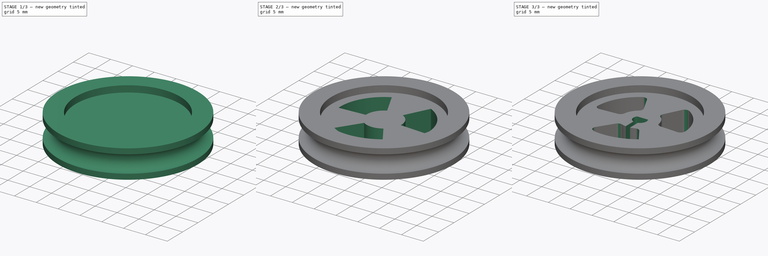
[diagram: build sequence overview — one tinted view per stage of 3, left to right]
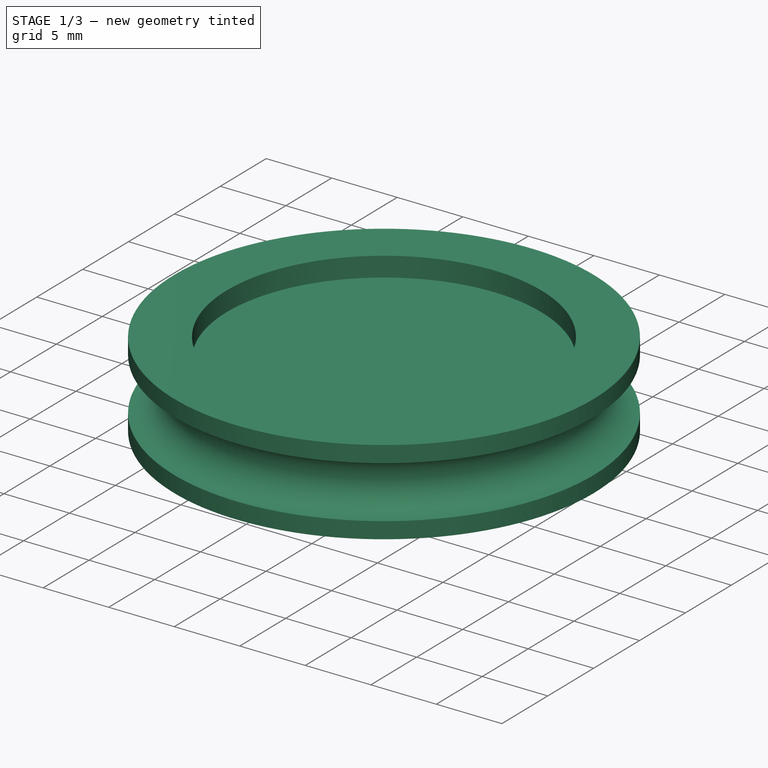
[diagram: stage 1 of 3 — iso view after this stage's code; geometry added in this stage tinted green]
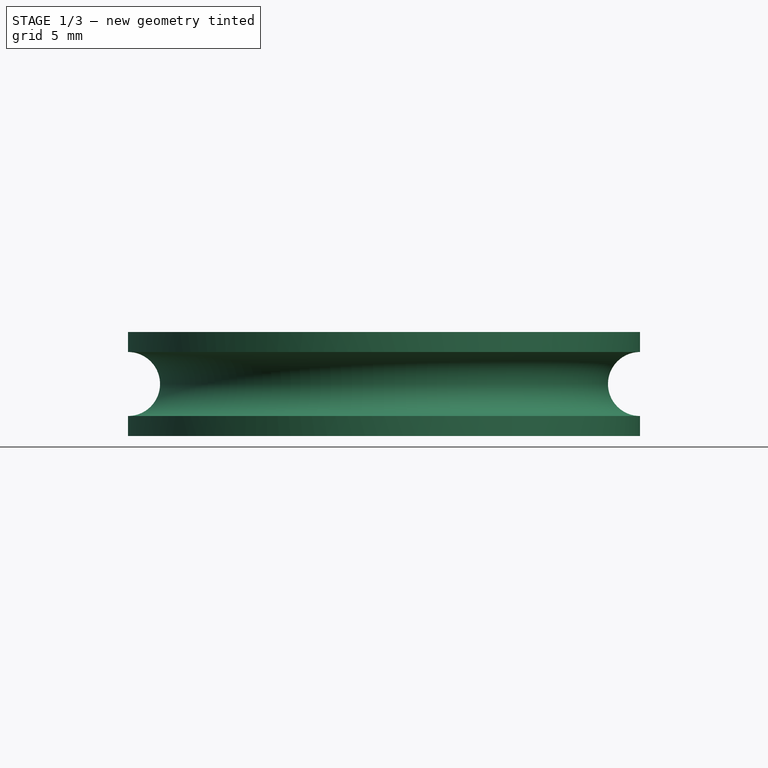
[diagram: stage 1 of 3 — front view after this stage's code; geometry added in this stage tinted green]
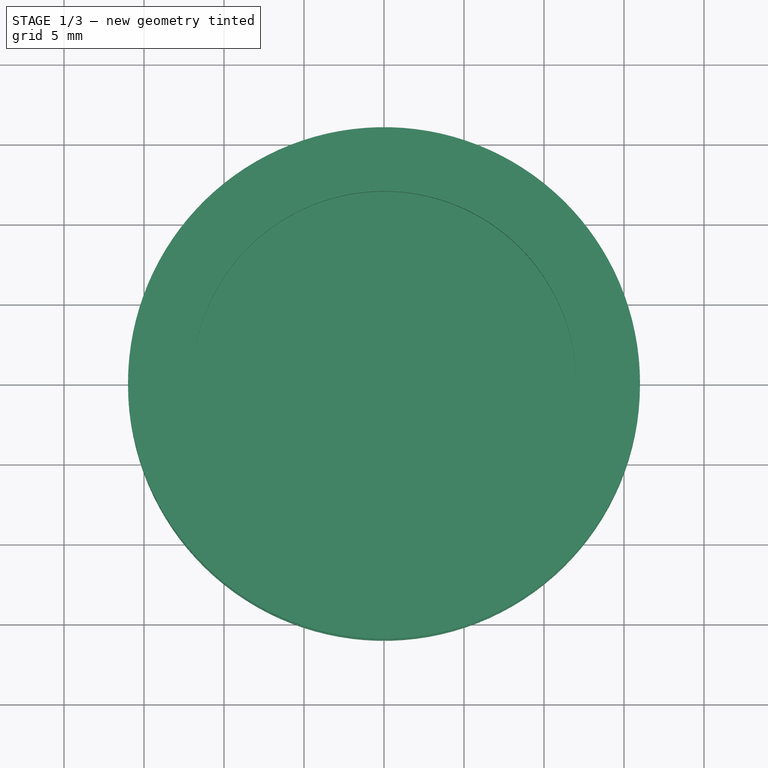
[diagram: stage 1 of 3 — top view after this stage's code; geometry added in this stage tinted green]
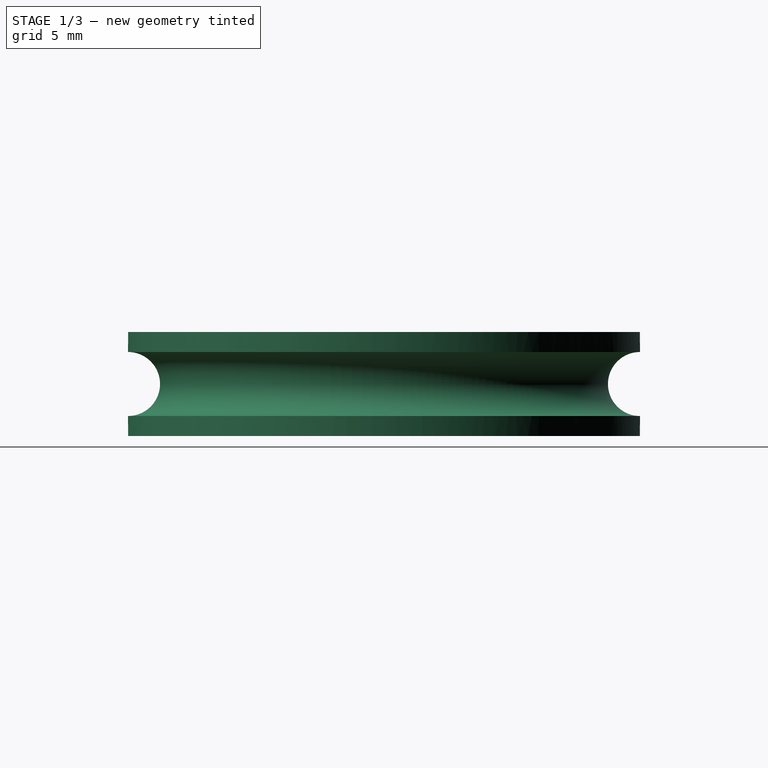
[diagram: stage 1 of 3 — right view after this stage's code; geometry added in this stage tinted green]
FCSTD DOCUMENT  (FreeCAD 0.14R3700 (Git))
Label: ruedaMiniMotor
License: CC-BY 3.0
LicenseURL: http://creativecommons.org/licenses/by/3.0/
objects: Sketcher::SketchObject×3, PartDesign::Pocket×3, Part::Cut×2, Part::Cylinder×1, PartDesign::PolarPattern×1, Part::Fillet×1
note: 14 computed .brp shape members not serialized (recipe doc carries the construction recipe); baked Part::Feature solids carry a one-line shape summary decoded from their .brp

FEATURE [Part::Cylinder] Cylinder  label="Cilindro020"
  Angle = 360
  Height = 10
  Placement = pos=(0,0,5) rot=(0,0,1;0rad)
  Radius = 12
FEATURE [Part::Cut] Cut001
  Base = -> Cylinder
FEATURE [Part::Cut] Cut
  Base = -> Cut001
  Tool = -> Cylinder
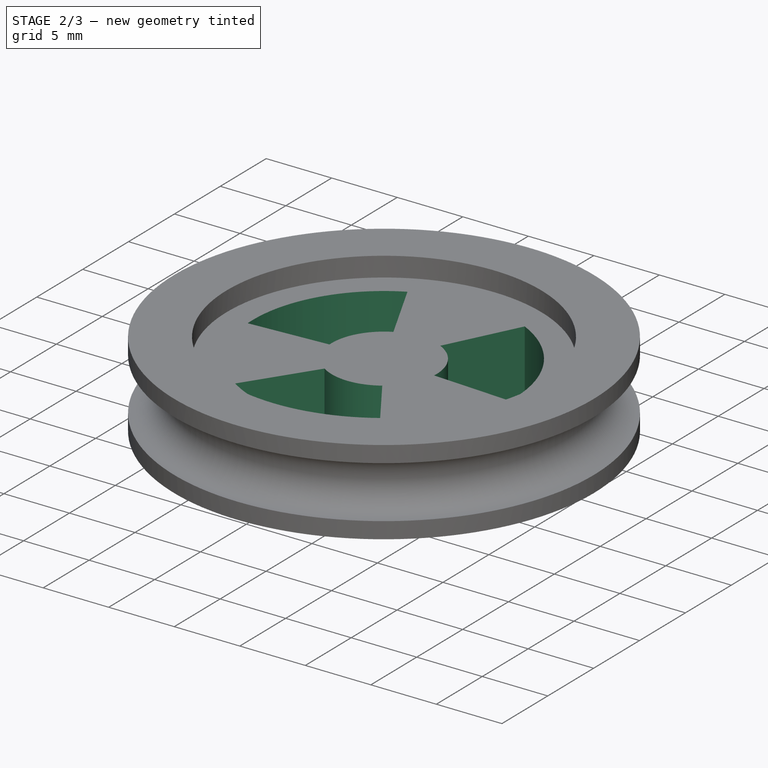
[diagram: stage 2 of 3 — iso view after this stage's code; geometry added in this stage tinted green]
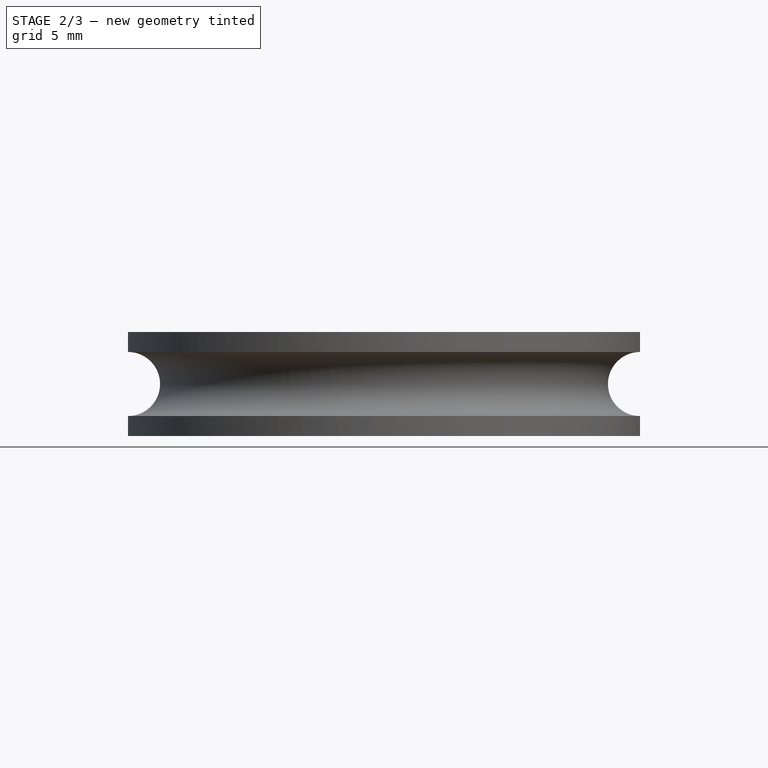
[diagram: stage 2 of 3 — front view after this stage's code; geometry added in this stage tinted green]
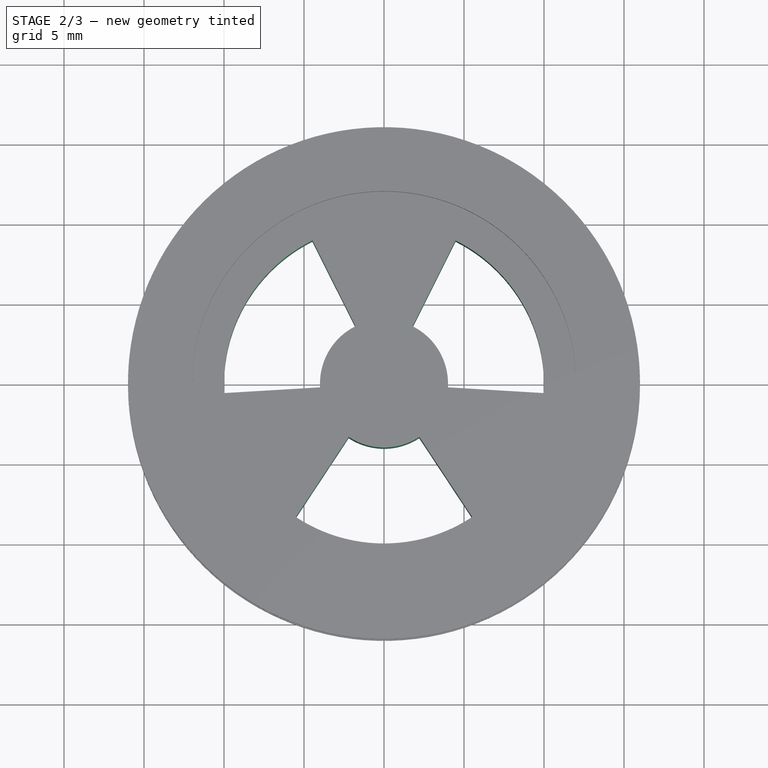
[diagram: stage 2 of 3 — top view after this stage's code; geometry added in this stage tinted green]
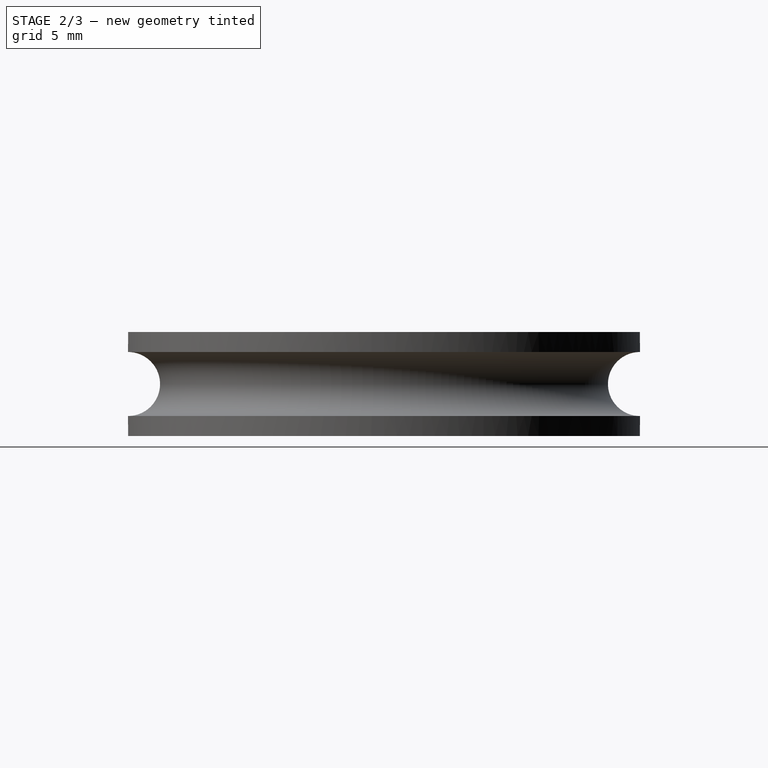
[diagram: stage 2 of 3 — right view after this stage's code; geometry added in this stage tinted green]
FEATURE [Sketcher::SketchObject] Sketch001
  Placement = pos=(0,0,0) rot=(1,0,0;3.14159rad)
  Support = -> Cut [Face7]
  sketch-geometry (4):
    g0: ArcOfCircle CenterX=0 CenterY=0 CenterZ=0 NormalX=0 NormalY=0 NormalZ=1 Radius=10 StartAngle=0.987326 EndAngle=2.15427
    g1: ArcOfCircle CenterX=0 CenterY=0 CenterZ=0 NormalX=0 NormalY=0 NormalZ=1 Radius=4 StartAngle=0.987326 EndAngle=2.15427
    g2: LineSegment StartX=-5.50923 StartY=8.34556 StartZ=0 EndX=-2.20369 EndY=3.33822 EndZ=0
    g3: LineSegment StartX=5.50923 StartY=8.34556 StartZ=0 EndX=2.20369 EndY=3.33822 EndZ=0
  constraints (12):
    c: Coincident(g0,g-1)
    c: Radius(g0) = 10
    c: Coincident(g1,g-1)
    c: Radius(g1) = 4
    c: Perpendicular(g2,g0)
    c: Perpendicular(g3,g0)
    c: Coincident(g0,g3)
    c: Coincident(g0,g2)
    c: Coincident(g1,g3)
    c: Coincident(g1,g2)
    c: DistanceY(g-1,g1) = 3.33822
    c: DistanceY(g-1,g0) = 8.34556
FEATURE [PartDesign::Pocket] Pocket002
  Length = 5
  Sketch = -> Sketch001
  Type = 0
FEATURE [PartDesign::PolarPattern] PolarPattern
  Angle = 360
  Axis = -> Sketch001 [N_Axis]
  Occurrences = 3
  Originals = -> [Pocket002]
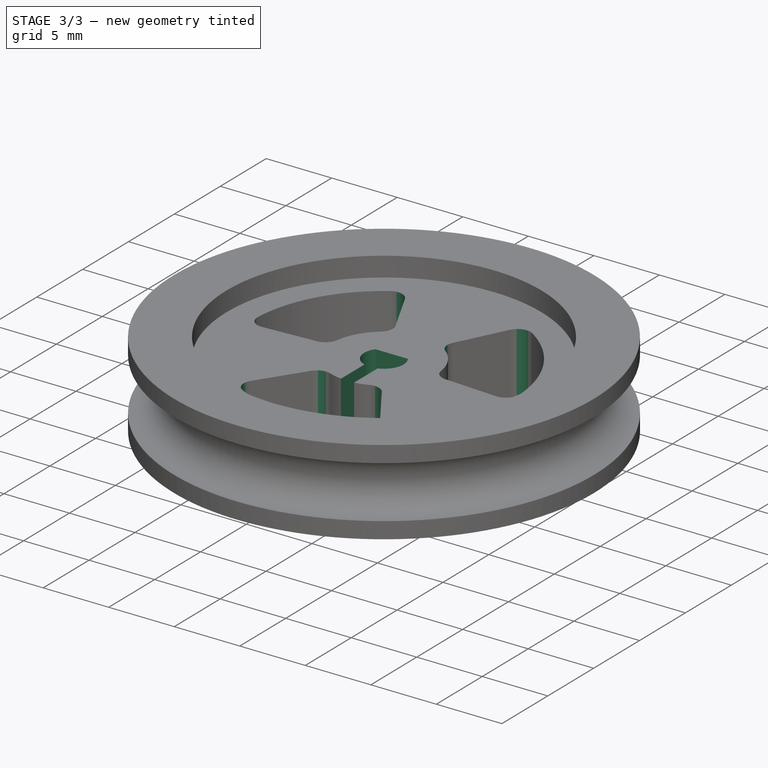
[diagram: stage 3 of 3 — iso view after this stage's code; geometry added in this stage tinted green]
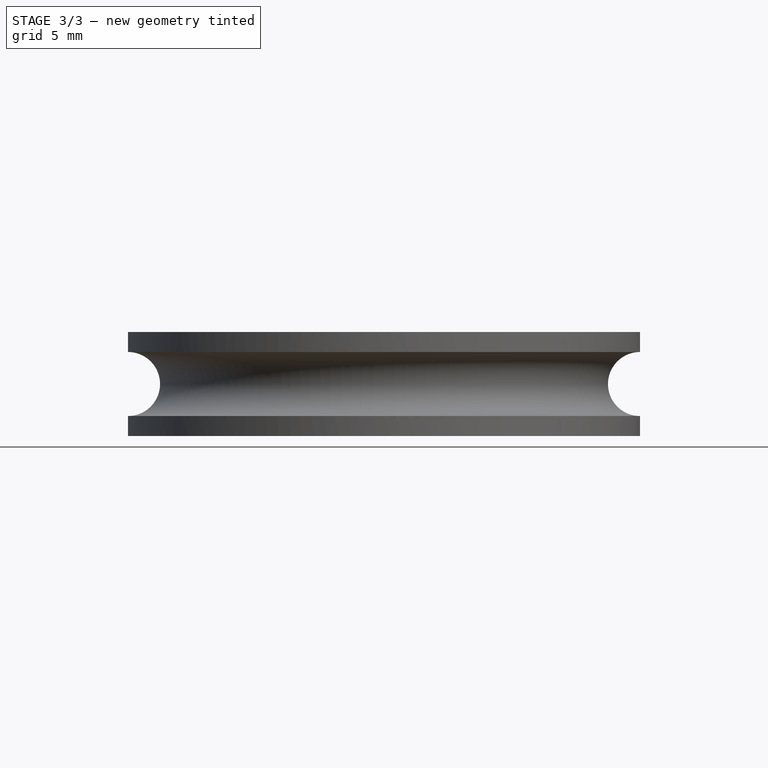
[diagram: stage 3 of 3 — front view after this stage's code; geometry added in this stage tinted green]
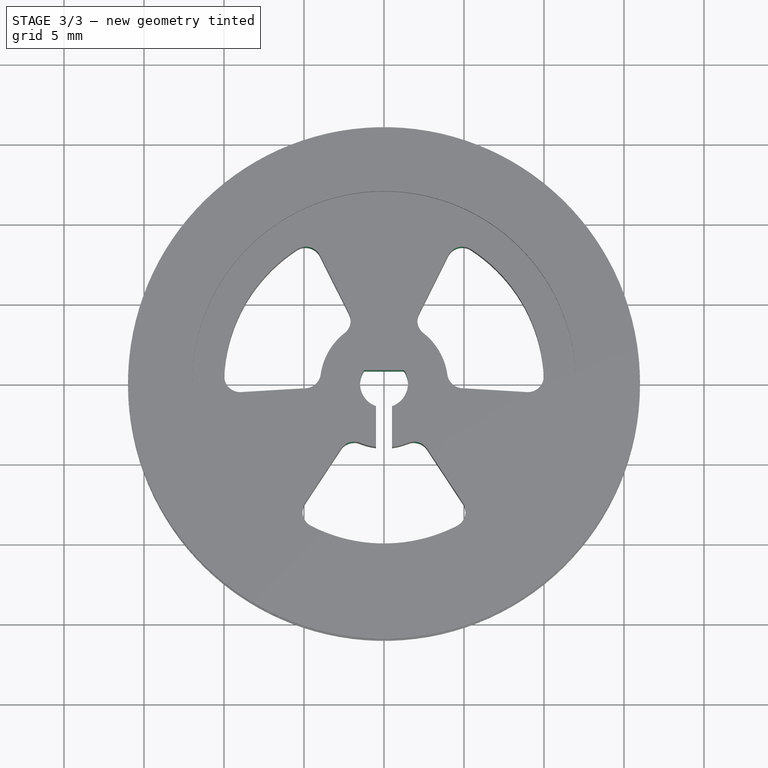
[diagram: stage 3 of 3 — top view after this stage's code; geometry added in this stage tinted green]
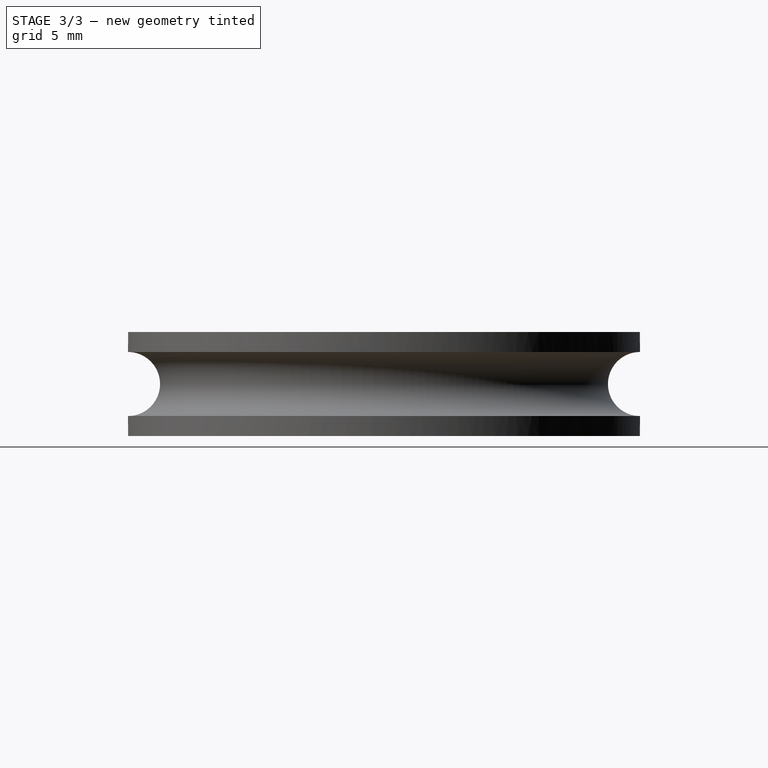
[diagram: stage 3 of 3 — right view after this stage's code; geometry added in this stage tinted green]
FEATURE [Sketcher::SketchObject] Sketch
  Placement = pos=(0,0,5) rot=(0,0,1;0rad)
  Support = -> PolarPattern [Face6]
  sketch-geometry (2):
    g0: ArcOfCircle CenterX=0 CenterY=0 CenterZ=0 NormalX=0 NormalY=0 NormalZ=1 Radius=1.5 StartAngle=2.55591 EndAngle=6.86887
    g1: LineSegment StartX=-1.25 StartY=0.829156 StartZ=0 EndX=1.25 EndY=0.829156 EndZ=0
  constraints (6):
    c: Coincident(g0,g-1)
    c: Radius(g0) = 1.5
    c: Coincident(g0,g1)
    c: Coincident(g0,g1)
    c: Horizontal(g1)
    c: DistanceX(g1) = 2.5
FEATURE [PartDesign::Pocket] Pocket001
  Length = 5
  Sketch = -> Sketch
  Type = 0
FEATURE [Sketcher::SketchObject] Sketch002
  ExternalGeometry = -> [Pocket001]
  Placement = pos=(0,0,5) rot=(0,0,1;0rad)
  Support = -> Pocket001 [Face6]
  sketch-geometry (4):
    g0: LineSegment StartX=-0.5 StartY=-1.09767 StartZ=0 EndX=0.5 EndY=-1.09767 EndZ=0
    g1: LineSegment StartX=0.5 StartY=-1.09767 StartZ=0 EndX=0.5 EndY=-4.09767 EndZ=0
    g2: LineSegment StartX=0.5 StartY=-4.09767 StartZ=0 EndX=-0.5 EndY=-4.09767 EndZ=0
    g3: LineSegment StartX=-0.5 StartY=-4.09767 StartZ=0 EndX=-0.5 EndY=-1.09767 EndZ=0
  constraints (12):
    c: Coincident(g0,g1)
    c: Coincident(g1,g2)
    c: Coincident(g2,g3)
    c: Coincident(g3,g0)
    c: Horizontal(g0)
    c: Horizontal(g2)
    c: Vertical(g1)
    c: Vertical(g3)
    c: DistanceX(g0) = 1
    c: Symmetric(g0,g0,g-2)
    c: DistanceY(g0,g-3) = 1.92683
    c: DistanceY(g3) = 3
FEATURE [PartDesign::Pocket] Pocket
  Length = 5
  Sketch = -> Sketch002
  Type = 0
FEATURE [Part::Fillet] Fillet  label="Rueda"
  Base = -> Pocket
  Edges = 12 edges r=1: [Edge53,Edge54,Edge55,Edge56,Edge60,Edge61,Edge62,Edge63,Edge64,Edge65,Edge66,Edge67]
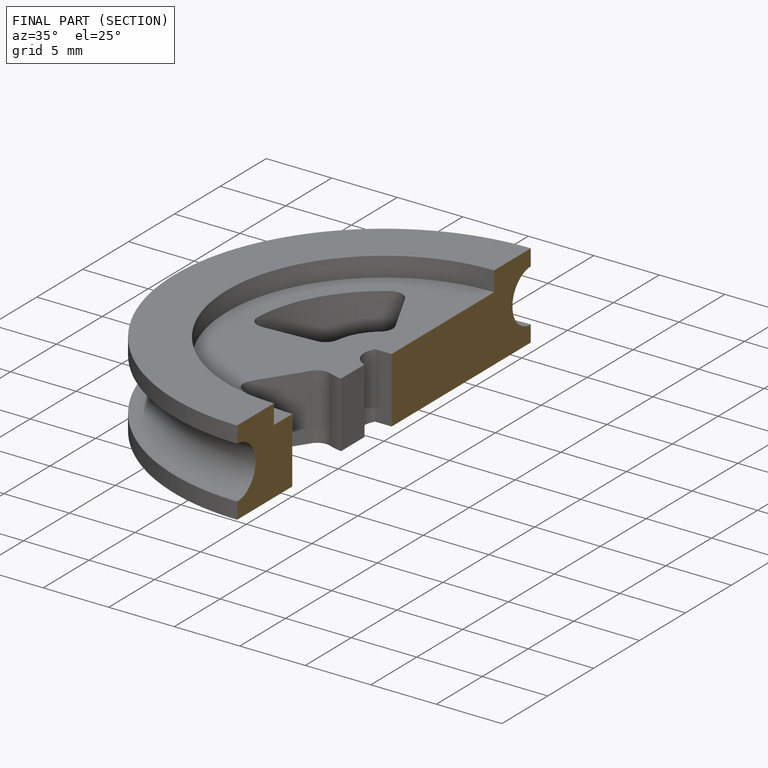
[diagram: finished part — half-section view (interior)]
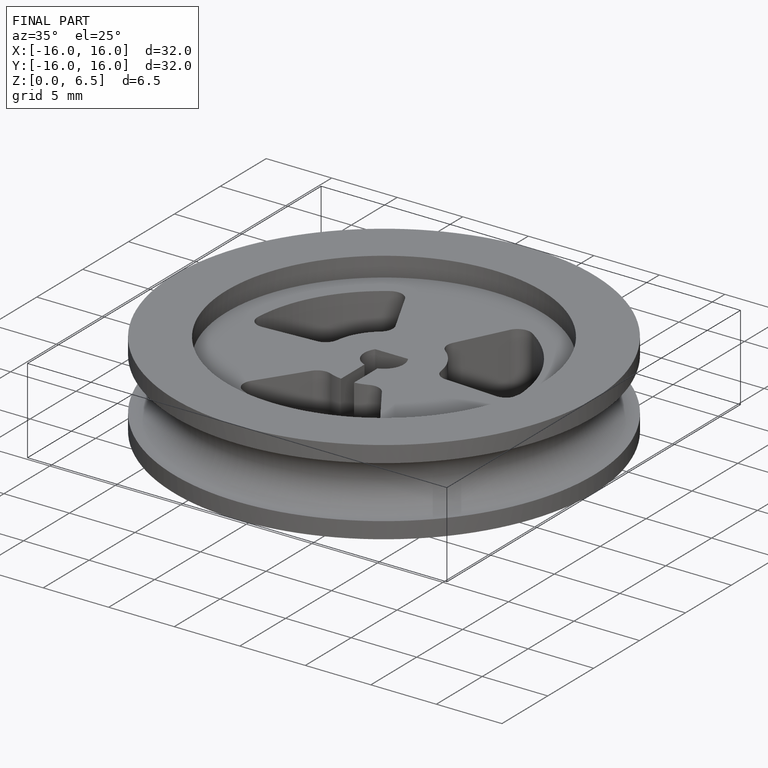
[diagram: finished part — iso view with bounding-box wireframe]
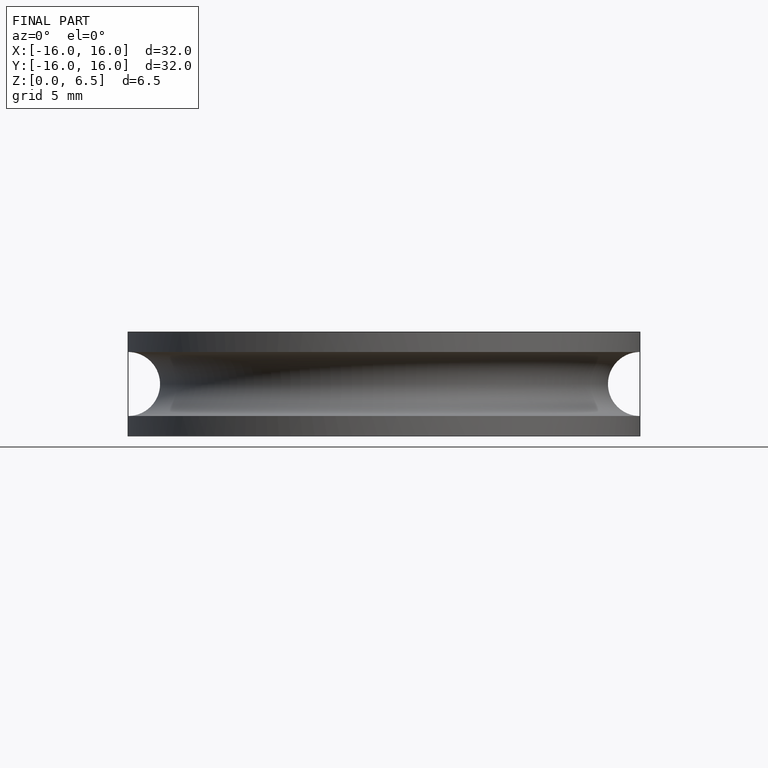
[diagram: finished part — front view with bounding-box wireframe]
